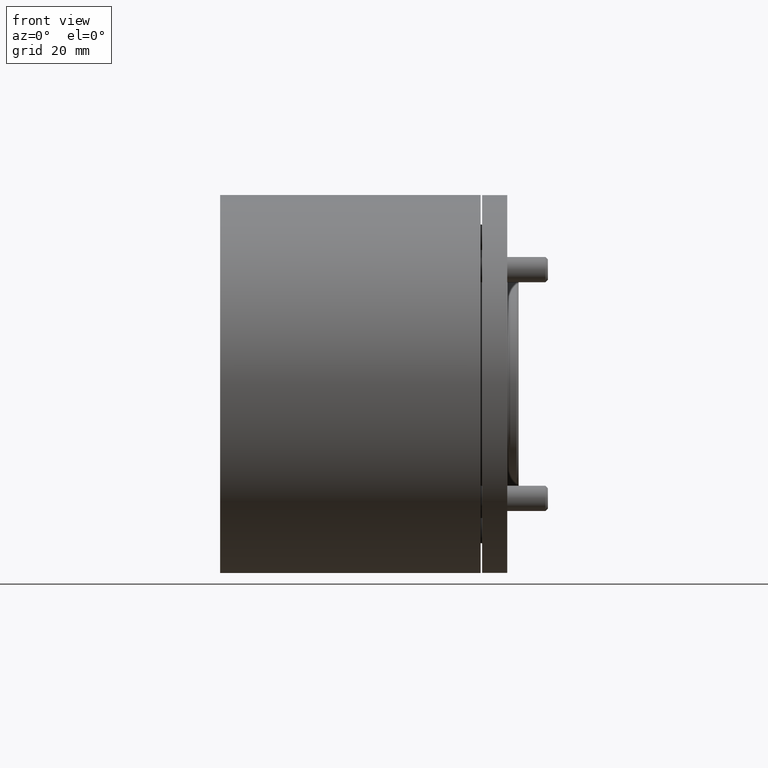
[diagram: clean part render]
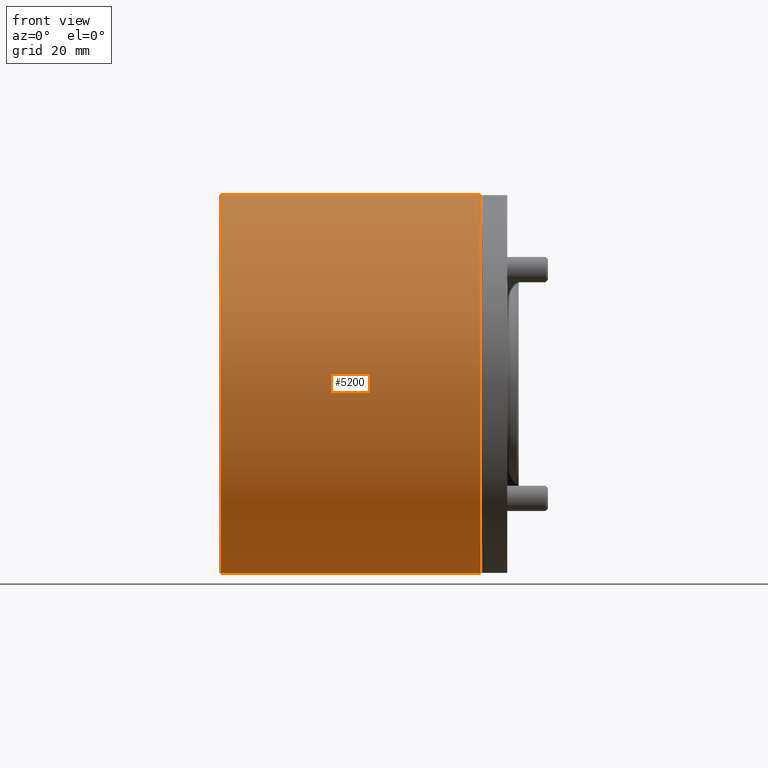
[diagram: same view with one face highlighted and labeled with its STEP entity id]
A machine part, front view. The second image highlights one B-rep face of the part: STEP entity #5200.
In plain terms, the highlighted cylindrical surface (partial cylindrical patch) has radius 45 mm, axis along (1, -0, 0).
Its self-contained STEP definition (entity closure, byte-faithful):
#930 = DIRECTION ( 'NONE',  ( 0.000000000000000000, 0.000000000000000000, 1.000000000000000000 ) ) ;
#1174 = EDGE_CURVE ( 'NONE', #3106, #2970, #11843, .T. ) ;
#1296 = FACE_OUTER_BOUND ( 'NONE', #4272, .T. ) ;
#1397 = VERTEX_POINT ( 'NONE', #11846 ) ;
#1739 = CARTESIAN_POINT ( 'NONE',  ( -39.25928614081220047, 0.000000000000000000, 45.00000000000000000 ) ) ;
#1862 = VECTOR ( 'NONE', #6485, 1000.000000000000000 ) ;
#2775 = DIRECTION ( 'NONE',  ( -1.000000000000000000, -0.000000000000000000, -0.000000000000000000 ) ) ;
#2970 = VERTEX_POINT ( 'NONE', #5925 ) ;
#3106 = VERTEX_POINT ( 'NONE', #10026 ) ;
#4007 = DIRECTION ( 'NONE',  ( 0.000000000000000000, 0.000000000000000000, 1.000000000000000000 ) ) ;
#4019 = VECTOR ( 'NONE', #2775, 1000.000000000000000 ) ;
#4272 = EDGE_LOOP ( 'NONE', ( #9453, #12365, #11089, #8724 ) ) ;
#4610 = AXIS2_PLACEMENT_3D ( 'NONE', #6008, #4946, #4007 ) ;
#4946 = DIRECTION ( 'NONE',  ( -1.000000000000000000, -0.000000000000000000, -0.000000000000000000 ) ) ;
#4991 = LINE ( 'NONE', #12598, #1862 ) ;
#5200 = ADVANCED_FACE ( 'NONE', ( #1296 ), #10519, .T. ) ;
#5829 = CARTESIAN_POINT ( 'NONE',  ( 0.000000000000000000, 0.000000000000000000, 0.000000000000000000 ) ) ;
#5925 = CARTESIAN_POINT ( 'NONE',  ( 62.00000000000000000, 0.000000000000000000, 45.00000000000000000 ) ) ;
#6008 = CARTESIAN_POINT ( 'NONE',  ( 62.00000000000000000, 0.000000000000000000, 0.000000000000000000 ) ) ;
#6058 = EDGE_CURVE ( 'NONE', #1397, #10614, #6443, .T. ) ;
#6443 = CIRCLE ( 'NONE', #9271, 45.00000000000000000 ) ;
#6485 = DIRECTION ( 'NONE',  ( -1.000000000000000000, -0.000000000000000000, -0.000000000000000000 ) ) ;
#6558 = DIRECTION ( 'NONE',  ( 0.000000000000000000, 0.000000000000000000, 1.000000000000000000 ) ) ;
#7603 = EDGE_CURVE ( 'NONE', #3106, #1397, #4991, .T. ) ;
#7739 = DIRECTION ( 'NONE',  ( -1.000000000000000000, -0.000000000000000000, -0.000000000000000000 ) ) ;
#7971 = LINE ( 'NONE', #1739, #4019 ) ;
#8004 = CARTESIAN_POINT ( 'NONE',  ( 0.000000000000000000, 0.000000000000000000, 45.00000000000000000 ) ) ;
#8496 = EDGE_CURVE ( 'NONE', #2970, #10614, #7971, .T. ) ;
#8724 = ORIENTED_EDGE ( 'NONE', *, *, #6058, .F. ) ;
#8881 = DIRECTION ( 'NONE',  ( -1.000000000000000000, -0.000000000000000000, -0.000000000000000000 ) ) ;
#9271 = AXIS2_PLACEMENT_3D ( 'NONE', #5829, #8881, #930 ) ;
#9453 = ORIENTED_EDGE ( 'NONE', *, *, #7603, .F. ) ;
#10026 = CARTESIAN_POINT ( 'NONE',  ( 62.00000000000000000, 5.510910596163089556E-15, -45.00000000000000000 ) ) ;
#10519 = CYLINDRICAL_SURFACE ( 'NONE', #11779, 45.00000000000000000 ) ;
#10614 = VERTEX_POINT ( 'NONE', #8004 ) ;
#11089 = ORIENTED_EDGE ( 'NONE', *, *, #8496, .T. ) ;
#11779 = AXIS2_PLACEMENT_3D ( 'NONE', #12537, #7739, #6558 ) ;
#11843 = CIRCLE ( 'NONE', #4610, 45.00000000000000000 ) ;
#11846 = CARTESIAN_POINT ( 'NONE',  ( 0.000000000000000000, 5.510910596163089556E-15, -45.00000000000000000 ) ) ;
#12365 = ORIENTED_EDGE ( 'NONE', *, *, #1174, .T. ) ;
#12537 = CARTESIAN_POINT ( 'NONE',  ( -39.25928614081220047, 0.000000000000000000, 0.000000000000000000 ) ) ;
#12598 = CARTESIAN_POINT ( 'NONE',  ( -39.25928614081220047, 5.510910596163089556E-15, -45.00000000000000000 ) ) ;